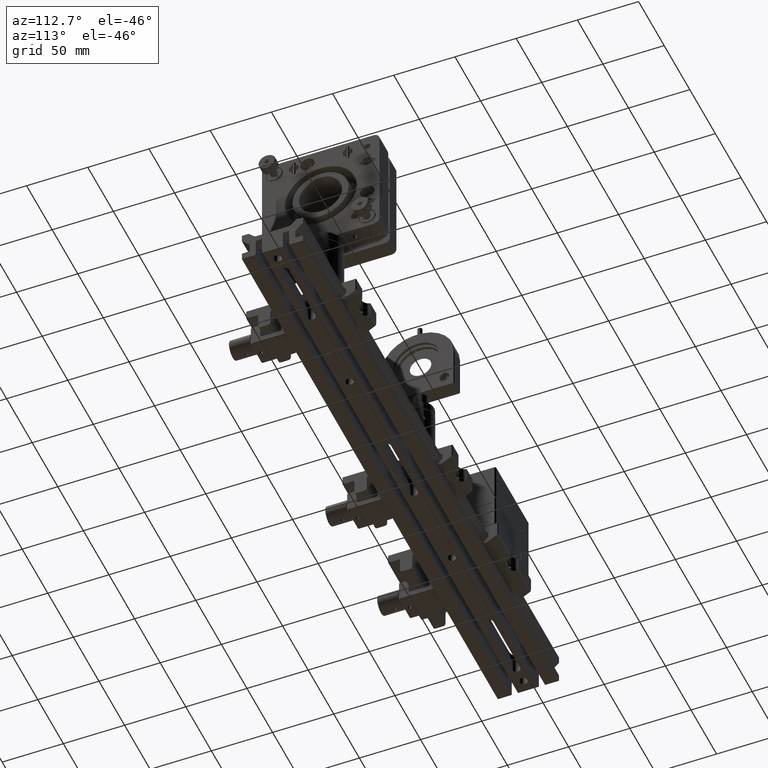
[diagram: clean part render]
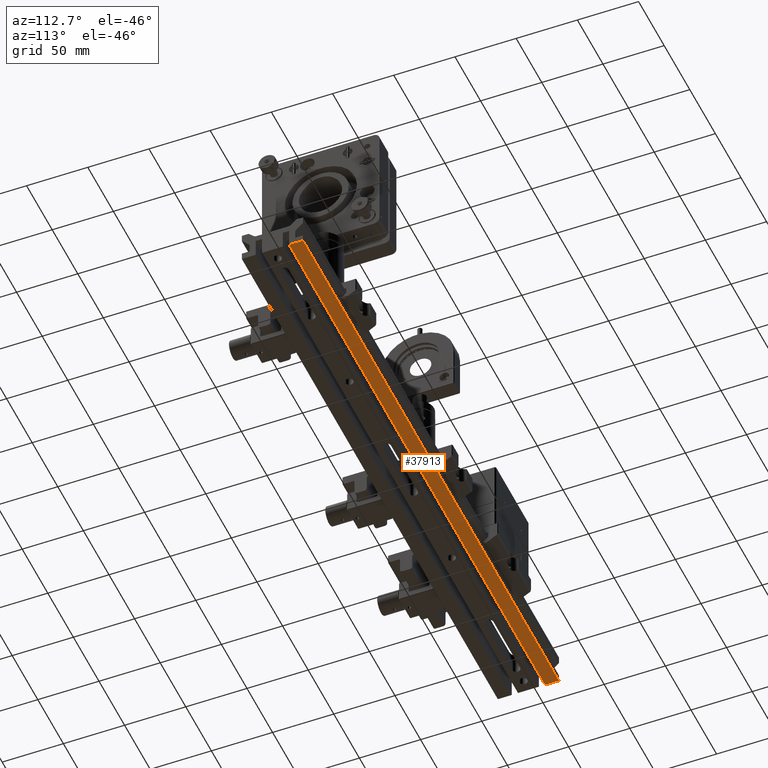
[diagram: same view with one face highlighted and labeled with its STEP entity id]
A machine part, auxiliary view. The second image highlights one B-rep face of the part: STEP entity #37913.
In plain terms, the highlighted planar face has unit normal (-0, -0, -1).
Its self-contained STEP definition (entity closure, byte-faithful):
#1338=LINE('',#56841,#4648);
#1379=LINE('',#56930,#4689);
#1380=LINE('',#56933,#4690);
#1381=LINE('',#56934,#4691);
#4648=VECTOR('',#45060,11.4);
#4689=VECTOR('',#45147,500.);
#4690=VECTOR('',#45150,11.4);
#4691=VECTOR('',#45151,500.);
#9066=FACE_OUTER_BOUND('',#11353,.T.);
#11353=EDGE_LOOP('',(#25617,#25618,#25619,#25620));
#16081=VERTEX_POINT('',#56838);
#16082=VERTEX_POINT('',#56840);
#16107=VERTEX_POINT('',#56928);
#16108=VERTEX_POINT('',#56932);
#19808=EDGE_CURVE('',#16082,#16081,#1338,.T.);
#19853=EDGE_CURVE('',#16081,#16107,#1379,.T.);
#19854=EDGE_CURVE('',#16107,#16108,#1380,.T.);
#19855=EDGE_CURVE('',#16082,#16108,#1381,.T.);
#25617=ORIENTED_EDGE('',*,*,#19854,.T.);
#25618=ORIENTED_EDGE('',*,*,#19855,.F.);
#25619=ORIENTED_EDGE('',*,*,#19808,.T.);
#25620=ORIENTED_EDGE('',*,*,#19853,.T.);
#36664=PLANE('',#40689);
#37913=ADVANCED_FACE('',(#9066),#36664,.T.);
#40689=AXIS2_PLACEMENT_3D('',#56931,#45148,#45149);
#45060=DIRECTION('',(0.,1.,0.));
#45147=DIRECTION('',(1.,0.,0.));
#45148=DIRECTION('center_axis',(0.,0.,-1.));
#45149=DIRECTION('ref_axis',(-1.,0.,0.));
#45150=DIRECTION('',(0.,-1.,0.));
#45151=DIRECTION('',(1.,0.,0.));
#56838=CARTESIAN_POINT('',(-250.,25.,0.));
#56840=CARTESIAN_POINT('',(-250.,13.6,0.));
#56841=CARTESIAN_POINT('',(-250.,13.6,0.));
#56928=CARTESIAN_POINT('',(250.,25.,0.));
#56930=CARTESIAN_POINT('',(-250.,25.,0.));
#56931=CARTESIAN_POINT('Origin',(0.,25.,0.));
#56932=CARTESIAN_POINT('',(250.,13.6,0.));
#56933=CARTESIAN_POINT('',(250.,25.,0.));
#56934=CARTESIAN_POINT('',(-250.,13.6,0.));